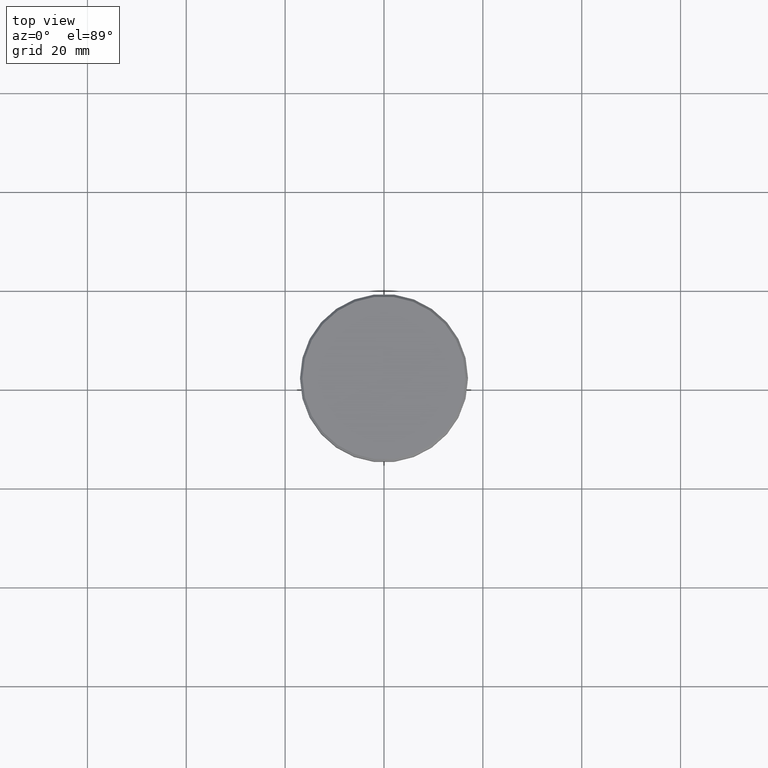
[diagram: clean part render]
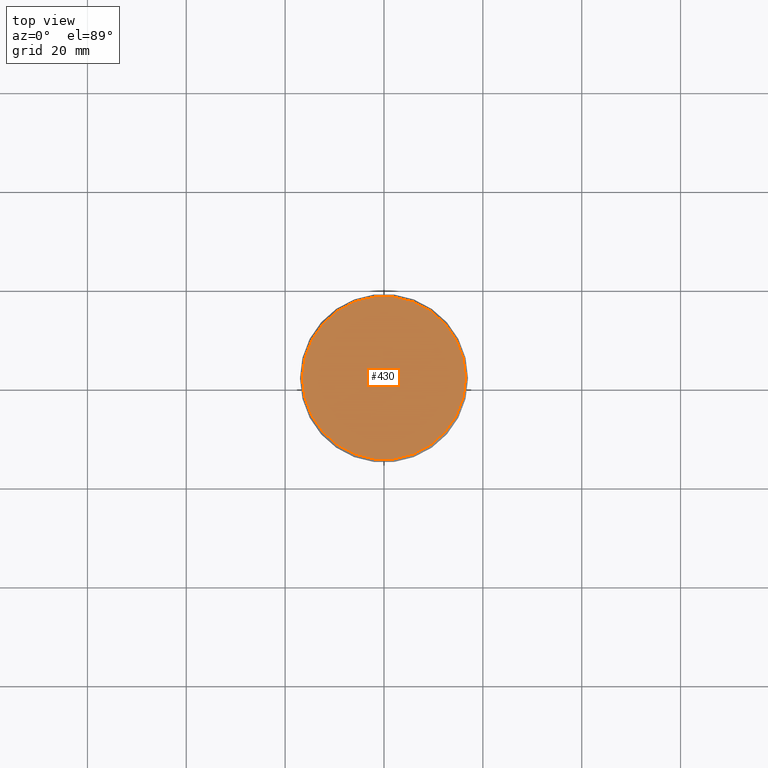
[diagram: same view with one face highlighted and labeled with its STEP entity id]
A machine part, top view. The second image highlights one B-rep face of the part: STEP entity #430.
In plain terms, the highlighted planar face has unit normal (0, -0, 1).
Its self-contained STEP definition (entity closure, byte-faithful):
#8 = CARTESIAN_POINT ( 'NONE',  ( -16.49999999999998579, 0.000000000000000000, 0.000000000000000000 ) ) ;
#58 = VERTEX_POINT ( 'NONE', #8 ) ;
#142 = VERTEX_POINT ( 'NONE', #412 ) ;
#247 = CIRCLE ( 'NONE', #673, 16.49999999999998579 ) ;
#310 = DIRECTION ( 'NONE',  ( 0.000000000000000000, -0.000000000000000000, 1.000000000000000000 ) ) ;
#339 = ORIENTED_EDGE ( 'NONE', *, *, #1000, .T. ) ;
#377 = PLANE ( 'NONE',  #1033 ) ;
#412 = CARTESIAN_POINT ( 'NONE',  ( 16.49999999999998579, 2.051283388571816098E-15, 0.000000000000000000 ) ) ;
#430 = ADVANCED_FACE ( 'NONE', ( #674 ), #377, .T. ) ;
#501 = DIRECTION ( 'NONE',  ( 1.000000000000000000, 0.000000000000000000, 0.000000000000000000 ) ) ;
#521 = CARTESIAN_POINT ( 'NONE',  ( 0.000000000000000000, 0.000000000000000000, 0.000000000000000000 ) ) ;
#548 = DIRECTION ( 'NONE',  ( 1.000000000000000000, 0.000000000000000000, 0.000000000000000000 ) ) ;
#641 = EDGE_CURVE ( 'NONE', #142, #58, #672, .T. ) ;
#672 = CIRCLE ( 'NONE', #705, 16.49999999999998579 ) ;
#673 = AXIS2_PLACEMENT_3D ( 'NONE', #521, #1158, #548 ) ;
#674 = FACE_OUTER_BOUND ( 'NONE', #1003, .T. ) ;
#699 = DIRECTION ( 'NONE',  ( -0.000000000000000000, -0.000000000000000000, 1.000000000000000000 ) ) ;
#705 = AXIS2_PLACEMENT_3D ( 'NONE', #789, #699, #501 ) ;
#755 = DIRECTION ( 'NONE',  ( 1.000000000000000000, 0.000000000000000000, 0.000000000000000000 ) ) ;
#789 = CARTESIAN_POINT ( 'NONE',  ( 0.000000000000000000, 0.000000000000000000, 0.000000000000000000 ) ) ;
#1000 = EDGE_CURVE ( 'NONE', #58, #142, #247, .T. ) ;
#1003 = EDGE_LOOP ( 'NONE', ( #339, #1097 ) ) ;
#1033 = AXIS2_PLACEMENT_3D ( 'NONE', #1102, #310, #755 ) ;
#1097 = ORIENTED_EDGE ( 'NONE', *, *, #641, .T. ) ;
#1102 = CARTESIAN_POINT ( 'NONE',  ( 0.000000000000000000, 0.000000000000000000, 0.000000000000000000 ) ) ;
#1158 = DIRECTION ( 'NONE',  ( -0.000000000000000000, -0.000000000000000000, 1.000000000000000000 ) ) ;